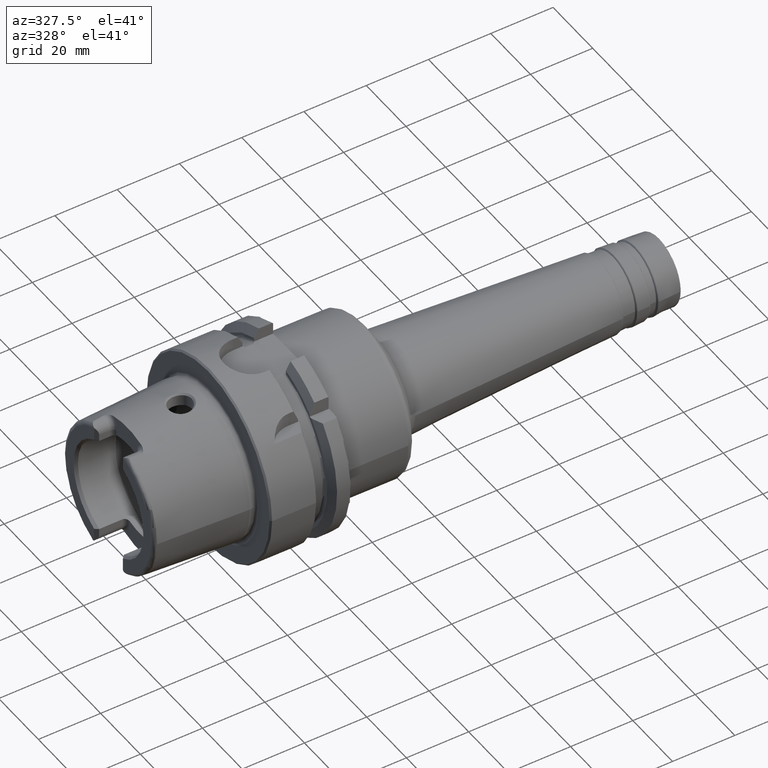
[diagram: clean part render]
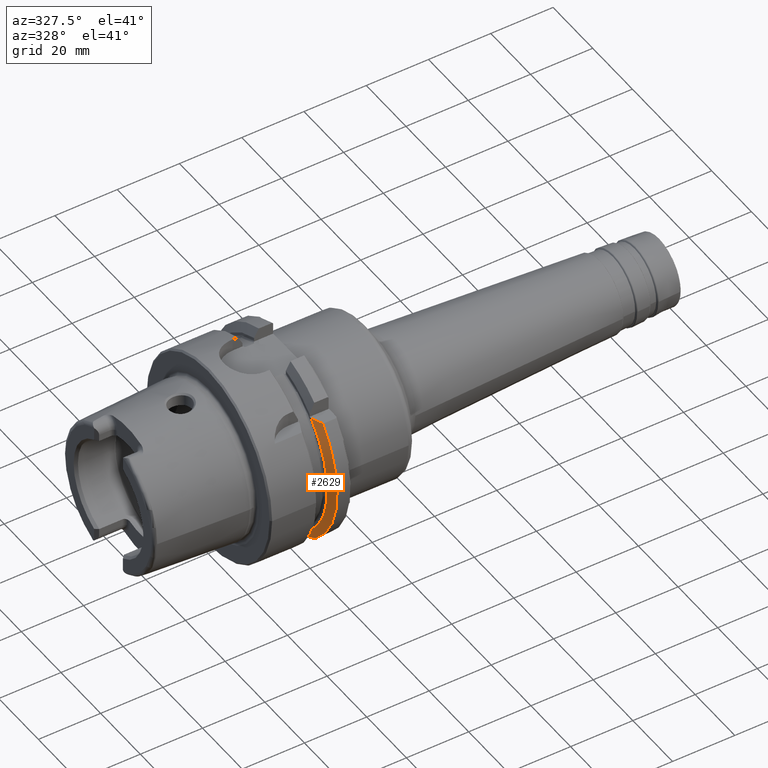
[diagram: same view with one face highlighted and labeled with its STEP entity id]
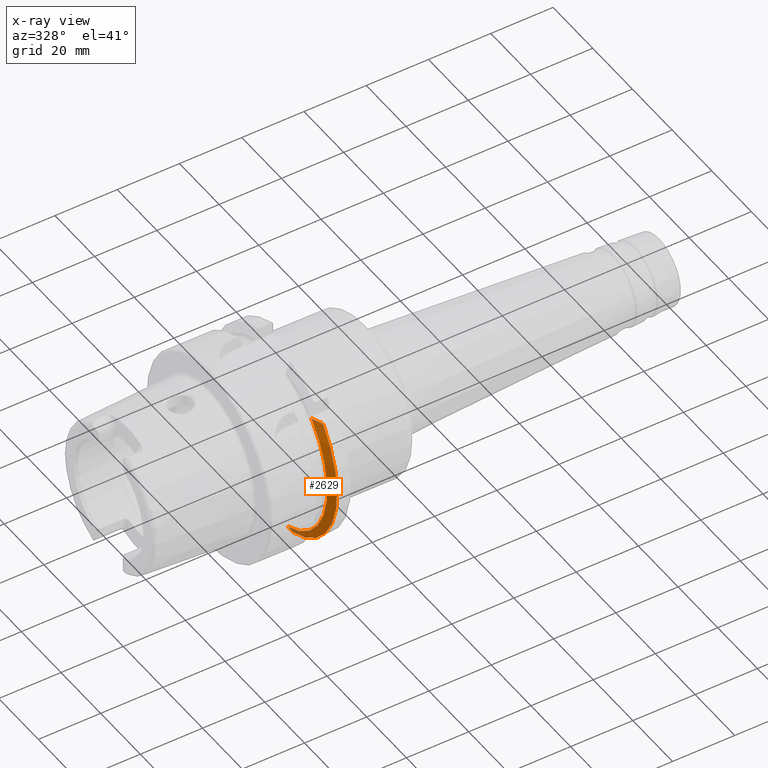
[diagram: x-ray of the same camera — body ghosted, the highlighted face saturated]
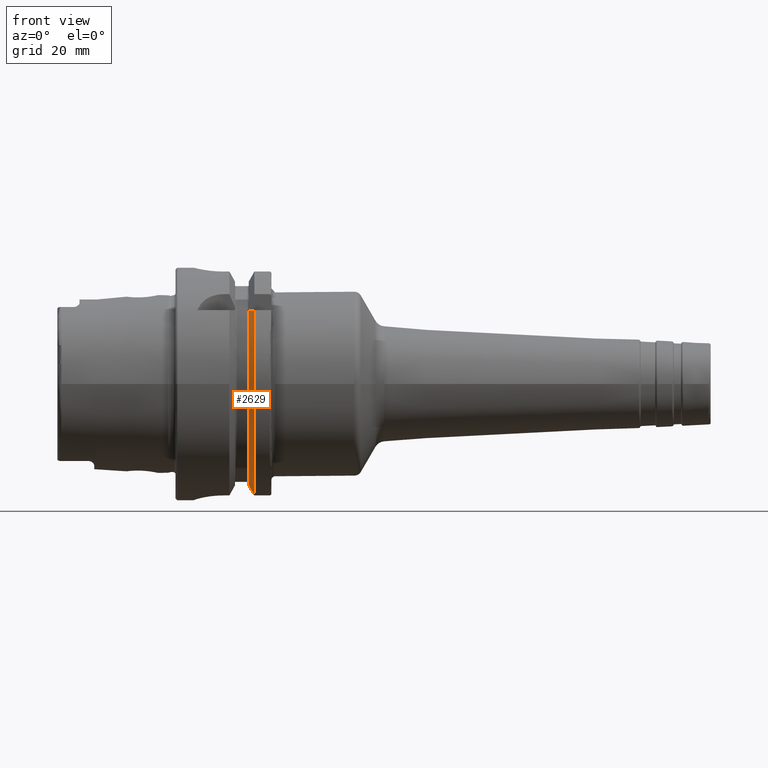
[diagram: same view with one face highlighted and labeled with its STEP entity id]
A machine part, auxiliary view. The second image highlights one B-rep face of the part: STEP entity #2629.
The next image is the same camera in x-ray: the body ghosted, the highlighted face saturated — about 4% of this face is hidden behind the body in this view.
A second angle (front view) of the same face is appended — the face is thin or edge-on in the first view.
In plain terms, the highlighted conical surface has half-angle 60 deg.
Its self-contained STEP definition (entity closure, byte-faithful):
#17=(
BOUNDED_CURVE()
B_SPLINE_CURVE(2,(#4935,#4936,#4937),.UNSPECIFIED.,.F.,.F.)
B_SPLINE_CURVE_WITH_KNOTS((3,3),(0.,0.378858277140999),.UNSPECIFIED.)
CURVE()
GEOMETRIC_REPRESENTATION_ITEM()
RATIONAL_B_SPLINE_CURVE((1.,1.00166199353895,1.))
REPRESENTATION_ITEM('')
);
#25=(
BOUNDED_CURVE()
B_SPLINE_CURVE(2,(#5149,#5150,#5151),.UNSPECIFIED.,.F.,.F.)
B_SPLINE_CURVE_WITH_KNOTS((3,3),(0.,0.311314369989023),.UNSPECIFIED.)
CURVE()
GEOMETRIC_REPRESENTATION_ITEM()
RATIONAL_B_SPLINE_CURVE((1.,1.00102053193229,1.))
REPRESENTATION_ITEM('')
);
#114=CONICAL_SURFACE('',#2953,30.1987976320958,1.0471975511966);
#523=FACE_OUTER_BOUND('',#666,.T.);
#666=EDGE_LOOP('',(#2215,#2216,#2217,#2218));
#872=CIRCLE('',#2920,28.8975952641916);
#886=CIRCLE('',#2952,31.5);
#1126=VERTEX_POINT('',#4931);
#1128=VERTEX_POINT('',#4934);
#1150=VERTEX_POINT('',#5031);
#1171=VERTEX_POINT('',#5147);
#1473=EDGE_CURVE('',#1128,#1126,#17,.T.);
#1503=EDGE_CURVE('',#1126,#1150,#872,.T.);
#1532=EDGE_CURVE('',#1150,#1171,#25,.T.);
#1561=EDGE_CURVE('',#1128,#1171,#886,.T.);
#2215=ORIENTED_EDGE('',*,*,#1473,.T.);
#2216=ORIENTED_EDGE('',*,*,#1503,.T.);
#2217=ORIENTED_EDGE('',*,*,#1532,.T.);
#2218=ORIENTED_EDGE('',*,*,#1561,.F.);
#2629=ADVANCED_FACE('',(#523),#114,.T.);
#2920=AXIS2_PLACEMENT_3D('',#5033,#3572,#3573);
#2952=AXIS2_PLACEMENT_3D('',#5282,#3658,#3659);
#2953=AXIS2_PLACEMENT_3D('',#5283,#3660,#3661);
#3572=DIRECTION('center_axis',(1.,0.,0.));
#3573=DIRECTION('ref_axis',(0.,0.,-1.));
#3658=DIRECTION('center_axis',(1.,0.,0.));
#3659=DIRECTION('ref_axis',(0.,0.,-1.));
#3660=DIRECTION('center_axis',(1.,0.,0.));
#3661=DIRECTION('ref_axis',(0.,-0.966819045705046,-0.255462194584608));
#4931=CARTESIAN_POINT('',(19.875,-20.8583559288126,20.));
#4934=CARTESIAN_POINT('',(21.3774990747593,-24.3361870472759,20.));
#4935=CARTESIAN_POINT('Ctrl Pts',(21.3774990747593,-24.3361870472759,20.));
#4936=CARTESIAN_POINT('Ctrl Pts',(20.5684390397667,-22.5223452916164,20.));
#4937=CARTESIAN_POINT('Ctrl Pts',(19.875,-20.8583559288126,20.));
#5031=CARTESIAN_POINT('',(19.875,-9.,-27.4603534582684));
#5033=CARTESIAN_POINT('Origin',(19.875,0.,0.));
#5147=CARTESIAN_POINT('',(21.3774990747593,-9.,-30.1869176962472));
#5149=CARTESIAN_POINT('Ctrl Pts',(19.875,-9.,-27.4603534582684));
#5150=CARTESIAN_POINT('Ctrl Pts',(20.5907174110262,-9.,-28.7648946319019));
#5151=CARTESIAN_POINT('Ctrl Pts',(21.3774990747593,-9.,-30.1869176962472));
#5282=CARTESIAN_POINT('Origin',(21.3774990747593,0.,0.));
#5283=CARTESIAN_POINT('Origin',(20.6262495373797,0.,0.));